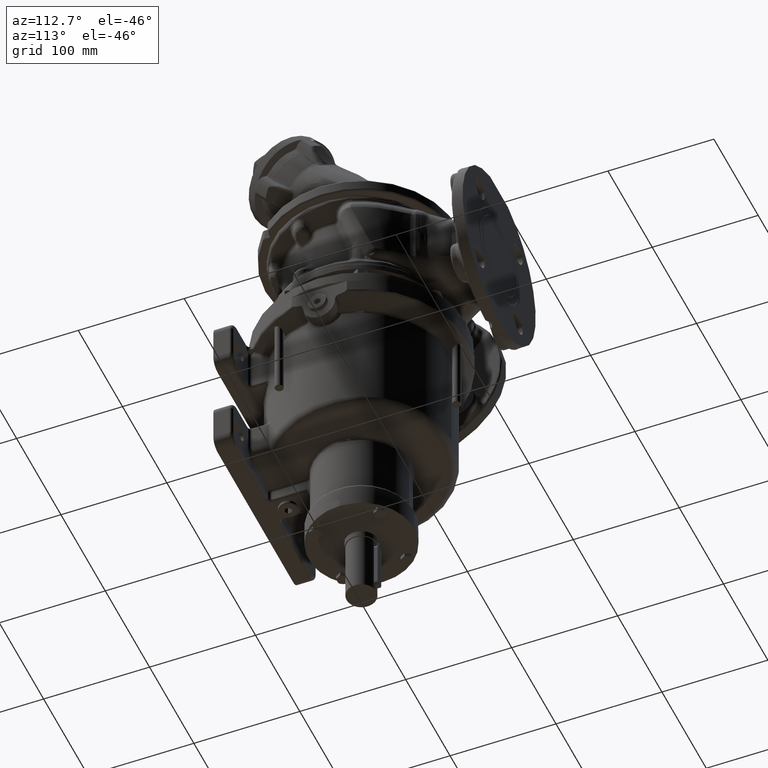
[diagram: clean part render]
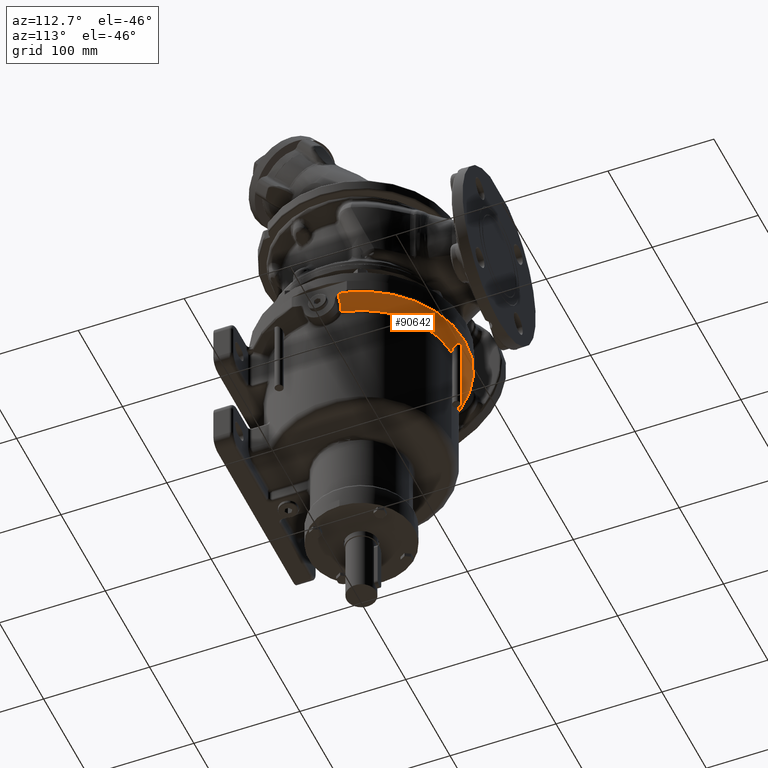
[diagram: same view with one face highlighted and labeled with its STEP entity id]
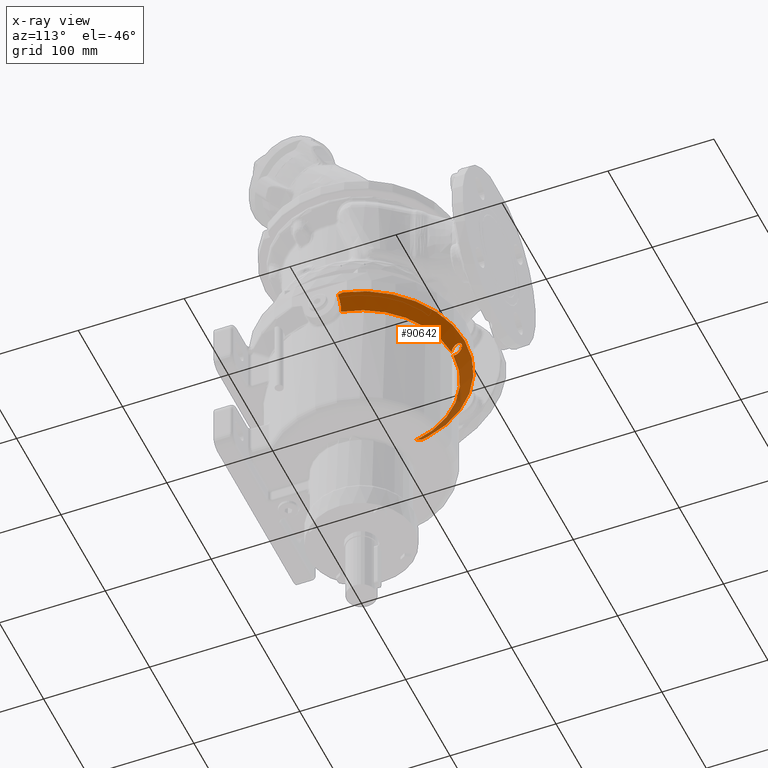
[diagram: x-ray of the same camera — body ghosted, the highlighted face saturated]
A machine part, auxiliary view. The second image highlights one B-rep face of the part: STEP entity #90642.
The next image is the same camera in x-ray: the body ghosted, the highlighted face saturated — about 9% of this face is hidden behind the body in this view.
In plain terms, the highlighted conical surface has half-angle 45 deg.
Its self-contained STEP definition (entity closure, byte-faithful):
#29673=CARTESIAN_POINT('',(-9.5E1,2.247047364031E1,-1.287867965644E1));
#29674=CARTESIAN_POINT('',(-9.5E1,2.192824920039E1,-1.300348886760E1));
#29675=CARTESIAN_POINT('',(-9.5E1,2.084549862991E1,-1.324415795765E1));
#29676=CARTESIAN_POINT('',(-9.5E1,1.922680506453E1,-1.357821014218E1));
#29677=CARTESIAN_POINT('',(-9.5E1,1.815060332488E1,-1.378306616397E1));
#29678=CARTESIAN_POINT('',(-9.5E1,1.761329098931E1,-1.388101625770E1));
#29680=CARTESIAN_POINT('',(-9.5E1,1.761329098931E1,-1.388101625770E1));
#29681=CARTESIAN_POINT('',(-9.459411516413E1,1.761172689114E1,
-1.428038506624E1));
#29682=CARTESIAN_POINT('',(-9.378947191650E1,1.760858878325E1,
-1.507195441314E1));
#29683=CARTESIAN_POINT('',(-9.260435779258E1,1.760385593488E1,
-1.623734856087E1));
#29684=CARTESIAN_POINT('',(-9.182790589990E1,1.760068118428E1,
-1.700057102929E1));
#29685=CARTESIAN_POINT('',(-9.144316457862E1,1.759908958940E1,
-1.737867965644E1));
#29687=CARTESIAN_POINT('',(-9.144316457862E1,1.759908958940E1,
-1.737867965644E1));
#29688=CARTESIAN_POINT('',(-9.117289439830E1,1.759797147636E1,
-1.764429057116E1));
#29689=CARTESIAN_POINT('',(-9.063682061006E1,1.758424800469E1,
-1.817321798790E1));
#29690=CARTESIAN_POINT('',(-8.984494745654E1,1.752984551754E1,
-1.896089377491E1));
#29691=CARTESIAN_POINT('',(-8.906874398467E1,1.744252551007E1,
-1.973942371106E1));
#29692=CARTESIAN_POINT('',(-8.830949255715E1,1.732328261157E1,
-2.050743024855E1));
#29693=CARTESIAN_POINT('',(-8.757066513739E1,1.717351721526E1,
-2.126126965428E1));
#29694=CARTESIAN_POINT('',(-8.686339834245E1,1.699735031305E1,
-2.198921513824E1));
#29695=CARTESIAN_POINT('',(-8.618986867502E1,1.679820286981E1,
-2.268843485060E1));
#29696=CARTESIAN_POINT('',(-8.554793908484E1,1.657815602756E1,
-2.336056341306E1));
#29697=CARTESIAN_POINT('',(-8.493697999164E1,1.633953280975E1,
-2.400569227348E1));
#29698=CARTESIAN_POINT('',(-8.454886518013E1,1.616908037359E1,
-2.441894984376E1));
#29699=CARTESIAN_POINT('',(-8.435957144752E1,1.608136535201E1,
-2.462132040703E1));
#29701=CARTESIAN_POINT('',(-1.764905154510E0,8.586054233074E1,
-2.462132034356E1));
#29702=CARTESIAN_POINT('',(-1.824687973086E0,8.588603141967E1,
-2.459460803251E1));
#29703=CARTESIAN_POINT('',(-1.944097024382E0,8.594000617423E1,
-2.453806786871E1));
#29704=CARTESIAN_POINT('',(-2.122052957159E0,8.603006825990E1,
-2.444382326924E1));
#29705=CARTESIAN_POINT('',(-2.298652275217E0,8.612958368551E1,
-2.433980607158E1));
#29706=CARTESIAN_POINT('',(-2.473490620818E0,8.623884858055E1,
-2.422574269568E1));
#29707=CARTESIAN_POINT('',(-2.646142832871E0,8.635817662009E1,
-2.410134614049E1));
#29708=CARTESIAN_POINT('',(-2.816102697040E0,8.648786581020E1,
-2.396635100777E1));
#29709=CARTESIAN_POINT('',(-2.982796243052E0,8.662819666121E1,
-2.382051554327E1));
#29710=CARTESIAN_POINT('',(-3.145576097585E0,8.677942108067E1,
-2.366363327807E1));
#29711=CARTESIAN_POINT('',(-3.303715130384E0,8.694174496029E1,
-2.349555100347E1));
#29712=CARTESIAN_POINT('',(-3.456413995092E0,8.711532130369E1,
-2.331617558112E1));
#29713=CARTESIAN_POINT('',(-3.602799968600E0,8.730023364909E1,
-2.312549057680E1));
#29714=CARTESIAN_POINT('',(-3.741925135357E0,8.749647058034E1,
-2.292358168222E1));
#29715=CARTESIAN_POINT('',(-3.872786051115E0,8.770392439153E1,
-2.271063686797E1));
#29716=CARTESIAN_POINT('',(-3.994324910158E0,8.792236214284E1,
-2.248697459262E1));
#29717=CARTESIAN_POINT('',(-4.105444836513E0,8.815140495520E1,
-2.225306292757E1));
#29718=CARTESIAN_POINT('',(-4.205037580293E0,8.839053010977E1,
-2.200951499749E1));
#29719=CARTESIAN_POINT('',(-4.291996239744E0,8.863903535417E1,
-2.175712258088E1));
#29720=CARTESIAN_POINT('',(-4.365250174442E0,8.889604230017E1,
-2.149684940397E1));
#29721=CARTESIAN_POINT('',(-4.423795175157E0,8.916048569649E1,
-2.122983859163E1));
#29722=CARTESIAN_POINT('',(-4.466729480863E0,8.943113393231E1,
-2.095738860950E1));
#29723=CARTESIAN_POINT('',(-4.493283331937E0,8.970652801595E1,
-2.068101106073E1));
#29724=CARTESIAN_POINT('',(-4.502872175689E0,8.998518990381E1,
-2.040221856284E1));
#29725=CARTESIAN_POINT('',(-4.495086569317E0,9.026533180219E1,
-2.012281462616E1));
#29726=CARTESIAN_POINT('',(-4.469883195278E0,9.054417818822E1,
-1.984556091805E1));
#29727=CARTESIAN_POINT('',(-4.427706725584E0,9.081913880610E1,
-1.957300058318E1));
#29728=CARTESIAN_POINT('',(-4.369208625541E0,9.108862660615E1,
-1.930665699772E1));
#29729=CARTESIAN_POINT('',(-4.295178946107E0,9.135128103798E1,
-1.904781466487E1));
#29730=CARTESIAN_POINT('',(-4.206569636144E0,9.160581802382E1,
-1.879767003175E1));
#29731=CARTESIAN_POINT('',(-4.104432164195E0,9.185116715771E1,
-1.855719959588E1));
#29732=CARTESIAN_POINT('',(-3.989890553145E0,9.208643667795E1,
-1.832719814343E1));
#29733=CARTESIAN_POINT('',(-3.864113307613E0,9.231091018764E1,
-1.810828511787E1));
#29734=CARTESIAN_POINT('',(-3.728277330588E0,9.252405322680E1,
-1.790090114212E1));
#29735=CARTESIAN_POINT('',(-3.583539802754E0,9.272550071691E1,
-1.770532285830E1));
#29736=CARTESIAN_POINT('',(-3.431027756766E0,9.291502687014E1,
-1.752169421016E1));
#29737=CARTESIAN_POINT('',(-3.271804150026E0,9.309255053658E1,
-1.735002285126E1));
#29738=CARTESIAN_POINT('',(-3.106864459401E0,9.325810142737E1,
-1.719021408477E1));
#29739=CARTESIAN_POINT('',(-2.937128128323E0,9.341180304112E1,
-1.704208810325E1));
#29740=CARTESIAN_POINT('',(-2.763421652796E0,9.355386368862E1,
-1.690538912581E1));
#29741=CARTESIAN_POINT('',(-2.586487636784E0,9.368454752270E1,
-1.677981349969E1));
#29742=CARTESIAN_POINT('',(-2.406979183756E0,9.380416399056E1,
-1.666501979138E1));
#29743=CARTESIAN_POINT('',(-2.225459571801E0,9.391305366469E1,
-1.656064221815E1));
#29744=CARTESIAN_POINT('',(-2.042412159252E0,9.401157114099E1,
-1.646630674756E1));
#29745=CARTESIAN_POINT('',(-1.858238913961E0,9.410007748100E1,
-1.638163796100E1));
#29746=CARTESIAN_POINT('',(-1.673269185234E0,9.417892805215E1,
-1.630627028596E1));
#29747=CARTESIAN_POINT('',(-1.487770066457E0,9.424846290009E1,
-1.623985677315E1));
#29748=CARTESIAN_POINT('',(-1.301946760314E0,9.430900278018E1,
-1.618207247174E1));
#29749=CARTESIAN_POINT('',(-1.115945365328E0,9.436084333288E1,
-1.613261960476E1));
#29750=CARTESIAN_POINT('',(-9.298806777464E-1,9.440424487547E1,
-1.609123694760E1));
#29751=CARTESIAN_POINT('',(-7.438195327662E-1,9.443943572430E1,
-1.605769633857E1));
#29752=CARTESIAN_POINT('',(-5.577984241097E-1,9.446660612070E1,
-1.603180820181E1));
#29753=CARTESIAN_POINT('',(-3.718208116428E-1,9.448590535443E1,
-1.601342406190E1));
#29754=CARTESIAN_POINT('',(-1.859174583808E-1,9.449744131058E1,
-1.600243679994E1));
#29755=CARTESIAN_POINT('',(-6.192840175362E-2,9.45E1,-1.6E1));
#29756=CARTESIAN_POINT('',(3.594840314101E-13,9.45E1,-1.6E1));
#29758=CARTESIAN_POINT('',(3.594840314101E-13,9.45E1,-1.6E1));
#29759=CARTESIAN_POINT('',(6.195406490300E-2,9.45E1,-1.6E1));
#29760=CARTESIAN_POINT('',(1.859942843766E-1,9.449743918799E1,
-1.600243882138E1));
#29761=CARTESIAN_POINT('',(3.719733007105E-1,9.448589376497E1,
-1.601343510045E1));
#29762=CARTESIAN_POINT('',(5.580257021607E-1,9.446657879786E1,
-1.603183423095E1));
#29763=CARTESIAN_POINT('',(7.441209241282E-1,9.443938630452E1,
-1.605774343129E1));
#29764=CARTESIAN_POINT('',(9.302554355749E-1,9.440416686001E1,
-1.609131131587E1));
#29765=CARTESIAN_POINT('',(1.116393044326E0,9.436072991867E1,
-1.613272776424E1));
#29766=CARTESIAN_POINT('',(1.302466636330E0,9.430884690595E1,
-1.618222120174E1));
#29767=CARTESIAN_POINT('',(1.488362068495E0,9.424825686163E1,
-1.624005348845E1));
#29768=CARTESIAN_POINT('',(1.673932296534E0,9.417866388483E1,
-1.630652267735E1));
#29769=CARTESIAN_POINT('',(1.858972167442E0,9.409974661801E1,
-1.638195432744E1));
#29770=CARTESIAN_POINT('',(2.043215367246E0,9.401116377768E1,
-1.646669661265E1));
#29771=CARTESIAN_POINT('',(2.226329483917E0,9.391256060894E1,
-1.656111456801E1));
#29772=CARTESIAN_POINT('',(2.407913571904E0,9.380357464911E1,
-1.666558501017E1));
#29773=CARTESIAN_POINT('',(2.587483889654E0,9.368385021035E1,
-1.678048308803E1));
#29774=CARTESIAN_POINT('',(2.764474017406E0,9.355304759683E1,
-1.690617382168E1));
#29775=CARTESIAN_POINT('',(2.938230174548E0,9.341085675811E1,
-1.704299931121E1));
#29776=CARTESIAN_POINT('',(3.108009177883E0,9.325701254507E1,
-1.719126426955E1));
#29777=CARTESIAN_POINT('',(3.272981936452E0,9.309130743167E1,
-1.735122383424E1));
#29778=CARTESIAN_POINT('',(3.432226455622E0,9.291361921478E1,
-1.752305667889E1));
#29779=CARTESIAN_POINT('',(3.584746209993E0,9.272391810590E1,
-1.770685769763E1));
#29780=CARTESIAN_POINT('',(3.729476685095E0,9.252228563870E1,
-1.790261899706E1));
#29781=CARTESIAN_POINT('',(3.865287792077E0,9.230895067846E1,
-1.811019377223E1));
#29782=CARTESIAN_POINT('',(3.991020764023E0,9.208428020843E1,
-1.832930364048E1));
#29783=CARTESIAN_POINT('',(4.105497523206E0,9.184881048187E1,
-1.855950632920E1));
#29784=CARTESIAN_POINT('',(4.207548367692E0,9.160326016238E1,
-1.880018026456E1));
#29785=CARTESIAN_POINT('',(4.296047727016E0,9.134852665077E1,
-1.905052516700E1));
#29786=CARTESIAN_POINT('',(4.369945591650E0,9.108567676977E1,
-1.930956809456E1));
#29787=CARTESIAN_POINT('',(4.428285741775E0,9.081601709407E1,
-1.957609035736E1));
#29788=CARTESIAN_POINT('',(4.470288642119E0,9.054087436770E1,
-1.984884069707E1));
#29789=CARTESIAN_POINT('',(4.495291652597E0,9.026183459866E1,
-2.012629727581E1));
#29790=CARTESIAN_POINT('',(4.502851614324E0,8.998192778190E1,
-2.040547762485E1));
#29791=CARTESIAN_POINT('',(4.493090919985E0,8.970371935898E1,
-2.068382583010E1));
#29792=CARTESIAN_POINT('',(4.466407712888E0,8.942866674900E1,
-2.095986878219E1));
#29793=CARTESIAN_POINT('',(4.423392982646E0,8.915840910922E1,
-2.123193256934E1));
#29794=CARTESIAN_POINT('',(4.364809215210E0,8.889432730532E1,
-2.149858396924E1));
#29795=CARTESIAN_POINT('',(4.291556078566E0,8.863766931340E1,
-2.175850831057E1));
#29796=CARTESIAN_POINT('',(4.204631492286E0,8.838948591089E1,
-2.201057730339E1));
#29797=CARTESIAN_POINT('',(4.105099794177E0,8.815065177213E1,
-2.225383132620E1));
#29798=CARTESIAN_POINT('',(3.994060843981E0,8.792186473675E1,
-2.248748343915E1));
#29799=CARTESIAN_POINT('',(3.872617003736E0,8.770364735073E1,
-2.271092105643E1));
#29800=CARTESIAN_POINT('',(3.741858471751E0,8.749637724926E1,
-2.292367772995E1));
#29801=CARTESIAN_POINT('',(3.602836569713E0,8.730028728554E1,
-2.312543542740E1));
#29802=CARTESIAN_POINT('',(3.456547740809E0,8.711548509124E1,
-2.331600657116E1));
#29803=CARTESIAN_POINT('',(3.303936261219E0,8.694198637978E1,
-2.349530131554E1));
#29804=CARTESIAN_POINT('',(3.145870545185E0,8.677971027498E1,
-2.366333356945E1));
#29805=CARTESIAN_POINT('',(2.983142959416E0,8.662850416322E1,
-2.382019626567E1));
#29806=CARTESIAN_POINT('',(2.816479982924E0,8.648816847447E1,
-2.396603621176E1));
#29807=CARTESIAN_POINT('',(2.646526579323E0,8.635845497993E1,
-2.410105616091E1));
#29808=CARTESIAN_POINT('',(2.473852594443E0,8.623908562435E1,
-2.422549539267E1));
#29809=CARTESIAN_POINT('',(2.298965516392E0,8.612976828230E1,
-2.433961322334E1));
#29810=CARTESIAN_POINT('',(2.122289614979E0,8.603019291896E1,
-2.444369287229E1));
#29811=CARTESIAN_POINT('',(1.944229499657E0,8.594006746323E1,
-2.453800367775E1));
#29812=CARTESIAN_POINT('',(1.824735110891E0,8.588605151741E1,
-2.459458697027E1));
#29813=CARTESIAN_POINT('',(1.764905154511E0,8.586054233074E1,
-2.462132034356E1));
#29815=CARTESIAN_POINT('',(8.435957161218E1,1.608136534728E1,
-2.462132026178E1));
#29816=CARTESIAN_POINT('',(8.454866317592E1,1.616898639293E1,
-2.441916591988E1));
#29817=CARTESIAN_POINT('',(8.493632643882E1,1.633924911697E1,
-2.400638755806E1));
#29818=CARTESIAN_POINT('',(8.554638957760E1,1.657757411981E1,
-2.336219530088E1));
#29819=CARTESIAN_POINT('',(8.618741326640E1,1.679740561696E1,
-2.269099742357E1));
#29820=CARTESIAN_POINT('',(8.685983221156E1,1.699635915416E1,
-2.199290525151E1));
#29821=CARTESIAN_POINT('',(8.756588998623E1,1.717243290061E1,
-2.126616423526E1));
#29822=CARTESIAN_POINT('',(8.830513655358E1,1.732251493039E1,
-2.051185255106E1));
#29823=CARTESIAN_POINT('',(8.906544013101E1,1.744209774809E1,
-1.974274817174E1));
#29824=CARTESIAN_POINT('',(8.984275685673E1,1.752966339077E1,
-1.896307871285E1));
#29825=CARTESIAN_POINT('',(9.063568633097E1,1.758421028050E1,
-1.817433873369E1));
#29826=CARTESIAN_POINT('',(9.117251298200E1,1.759796989346E1,
-1.764466541296E1));
#29827=CARTESIAN_POINT('',(9.144316457862E1,1.759908958940E1,
-1.737867965644E1));
#29829=CARTESIAN_POINT('',(9.144316457862E1,1.759908958940E1,
-1.737867965644E1));
#29830=CARTESIAN_POINT('',(9.183854706673E1,1.760072520453E1,
-1.699011330944E1));
#29831=CARTESIAN_POINT('',(9.262919316942E1,1.760395660445E1,
-1.621293266662E1));
#29832=CARTESIAN_POINT('',(9.381480255433E1,1.760868839149E1,
-1.504703875886E1));
#29833=CARTESIAN_POINT('',(9.460497371184E1,1.761176872698E1,
-1.426970084114E1));
#29834=CARTESIAN_POINT('',(9.5E1,1.761329098121E1,-1.388101625880E1));
#29836=CARTESIAN_POINT('',(9.5E1,1.761329098121E1,-1.388101625880E1));
#29837=CARTESIAN_POINT('',(9.5E1,1.815064639945E1,-1.378305831126E1));
#29838=CARTESIAN_POINT('',(9.5E1,1.922690537326E1,-1.357819048881E1));
#29839=CARTESIAN_POINT('',(9.5E1,2.084560343853E1,-1.324413527002E1));
#29840=CARTESIAN_POINT('',(9.5E1,2.192829400942E1,-1.300347855346E1));
#29841=CARTESIAN_POINT('',(9.5E1,2.247047364031E1,-1.287867965644E1));
#29843=CARTESIAN_POINT('',(0.E0,0.E0,-1.287867965644E1));
#29844=DIRECTION('',(0.E0,0.E0,-1.E0));
#29845=DIRECTION('',(-9.731480752941E-1,2.301799807791E-1,0.E0));
#29846=AXIS2_PLACEMENT_3D('',#29843,#29844,#29845);
#30388=CARTESIAN_POINT('',(0.E0,0.E0,-2.462132034356E1));
#30389=DIRECTION('',(0.E0,0.E0,1.E0));
#30390=DIRECTION('',(9.823109981200E-1,1.872567835152E-1,0.E0));
#30391=AXIS2_PLACEMENT_3D('',#30388,#30389,#30390);
#30421=CARTESIAN_POINT('',(0.E0,0.E0,-2.462132034356E1));
#30422=DIRECTION('',(0.E0,0.E0,1.E0));
#30423=DIRECTION('',(-2.055114449327E-2,9.997888029279E-1,0.E0));
#30424=AXIS2_PLACEMENT_3D('',#30421,#30422,#30423);
#42184=VERTEX_POINT('',#29701);
#42185=VERTEX_POINT('',#29756);
#42186=VERTEX_POINT('',#29813);
#42211=CARTESIAN_POINT('',(-9.144316457860E1,1.759908958940E1,
-1.737867965646E1));
#42213=VERTEX_POINT('',#42211);
#42219=CARTESIAN_POINT('',(9.144316457862E1,1.759908958940E1,
-1.737867965644E1));
#42221=VERTEX_POINT('',#42219);
#42422=CARTESIAN_POINT('',(-8.435957185940E1,1.608136553982E1,
-2.462132001139E1));
#42424=VERTEX_POINT('',#42422);
#42480=CARTESIAN_POINT('',(8.435957116335E1,1.608136513460E1,
-2.462132075332E1));
#42481=VERTEX_POINT('',#42480);
#42543=VERTEX_POINT('',#29673);
#42544=VERTEX_POINT('',#29678);
#42549=VERTEX_POINT('',#29836);
#42550=VERTEX_POINT('',#29841);
#90616=CARTESIAN_POINT('',(0.E0,0.E0,-1.875000002227E1));
#90617=DIRECTION('',(0.E0,0.E0,1.E0));
#90618=DIRECTION('',(0.E0,-1.E0,0.E0));
#90619=AXIS2_PLACEMENT_3D('',#90616,#90617,#90618);
#90620=CONICAL_SURFACE('',#90619,9.174999997773E1,4.5E1);
#90621=ORIENTED_EDGE('',*,*,#89398,.T.);
#90623=ORIENTED_EDGE('',*,*,#90622,.T.);
#90625=ORIENTED_EDGE('',*,*,#90624,.T.);
#90627=ORIENTED_EDGE('',*,*,#90626,.F.);
#90629=ORIENTED_EDGE('',*,*,#90628,.T.);
#90631=ORIENTED_EDGE('',*,*,#90630,.T.);
#90633=ORIENTED_EDGE('',*,*,#90632,.F.);
#90635=ORIENTED_EDGE('',*,*,#90634,.T.);
#90637=ORIENTED_EDGE('',*,*,#90636,.T.);
#90638=ORIENTED_EDGE('',*,*,#90572,.T.);
#90639=ORIENTED_EDGE('',*,*,#90609,.F.);
#90640=EDGE_LOOP('',(#90621,#90623,#90625,#90627,#90629,#90631,#90633,#90635,
#90637,#90638,#90639));
#90641=FACE_OUTER_BOUND('',#90640,.F.);
#90642=ADVANCED_FACE('',(#90641),#90620,.T.);
#29679=B_SPLINE_CURVE_WITH_KNOTS('',3,(#29673,#29674,#29675,#29676,#29677,
#29678),.UNSPECIFIED.,.F.,.F.,(4,1,1,4),(0.E0,3.333333333333E-1,
6.666666666667E-1,1.E0),.UNSPECIFIED.);
#29686=B_SPLINE_CURVE_WITH_KNOTS('',3,(#29680,#29681,#29682,#29683,#29684,
#29685),.UNSPECIFIED.,.F.,.F.,(4,1,1,4),(0.E0,3.333333333333E-1,
6.666666666667E-1,1.E0),.UNSPECIFIED.);
#29700=B_SPLINE_CURVE_WITH_KNOTS('',3,(#29687,#29688,#29689,#29690,#29691,
#29692,#29693,#29694,#29695,#29696,#29697,#29698,#29699),.UNSPECIFIED.,.F.,.F.,(
4,1,1,1,1,1,1,1,1,1,4),(0.E0,1.E-1,2.E-1,3.E-1,4.E-1,5.E-1,6.E-1,7.E-1,8.E-1,
9.E-1,1.E0),.UNSPECIFIED.);
#29757=B_SPLINE_CURVE_WITH_KNOTS('',3,(#29701,#29702,#29703,#29704,#29705,
#29706,#29707,#29708,#29709,#29710,#29711,#29712,#29713,#29714,#29715,#29716,
#29717,#29718,#29719,#29720,#29721,#29722,#29723,#29724,#29725,#29726,#29727,
#29728,#29729,#29730,#29731,#29732,#29733,#29734,#29735,#29736,#29737,#29738,
#29739,#29740,#29741,#29742,#29743,#29744,#29745,#29746,#29747,#29748,#29749,
#29750,#29751,#29752,#29753,#29754,#29755,#29756),.UNSPECIFIED.,.F.,.F.,(4,1,1,
1,1,1,1,1,1,1,1,1,1,1,1,1,1,1,1,1,1,1,1,1,1,1,1,1,1,1,1,1,1,1,1,1,1,1,1,1,1,1,1,
1,1,1,1,1,1,1,1,1,1,4),(0.E0,1.886792452830E-2,3.773584905660E-2,
5.660377358491E-2,7.547169811321E-2,9.433962264151E-2,1.132075471698E-1,
1.320754716981E-1,1.509433962264E-1,1.698113207547E-1,1.886792452830E-1,
2.075471698113E-1,2.264150943396E-1,2.452830188679E-1,2.641509433962E-1,
2.830188679245E-1,3.018867924528E-1,3.207547169811E-1,3.396226415094E-1,
3.584905660377E-1,3.773584905660E-1,3.962264150943E-1,4.150943396226E-1,
4.339622641509E-1,4.528301886792E-1,4.716981132075E-1,4.905660377358E-1,
5.094339622642E-1,5.283018867925E-1,5.471698113208E-1,5.660377358491E-1,
5.849056603774E-1,6.037735849057E-1,6.226415094340E-1,6.415094339623E-1,
6.603773584906E-1,6.792452830189E-1,6.981132075472E-1,7.169811320755E-1,
7.358490566038E-1,7.547169811321E-1,7.735849056604E-1,7.924528301887E-1,
8.113207547170E-1,8.301886792453E-1,8.490566037736E-1,8.679245283019E-1,
8.867924528302E-1,9.056603773585E-1,9.245283018868E-1,9.433962264151E-1,
9.622641509434E-1,9.811320754717E-1,1.E0),.UNSPECIFIED.);
#29814=B_SPLINE_CURVE_WITH_KNOTS('',3,(#29758,#29759,#29760,#29761,#29762,
#29763,#29764,#29765,#29766,#29767,#29768,#29769,#29770,#29771,#29772,#29773,
#29774,#29775,#29776,#29777,#29778,#29779,#29780,#29781,#29782,#29783,#29784,
#29785,#29786,#29787,#29788,#29789,#29790,#29791,#29792,#29793,#29794,#29795,
#29796,#29797,#29798,#29799,#29800,#29801,#29802,#29803,#29804,#29805,#29806,
#29807,#29808,#29809,#29810,#29811,#29812,#29813),.UNSPECIFIED.,.F.,.F.,(4,1,1,
1,1,1,1,1,1,1,1,1,1,1,1,1,1,1,1,1,1,1,1,1,1,1,1,1,1,1,1,1,1,1,1,1,1,1,1,1,1,1,1,
1,1,1,1,1,1,1,1,1,1,4),(0.E0,1.886792452830E-2,3.773584905660E-2,
5.660377358491E-2,7.547169811321E-2,9.433962264151E-2,1.132075471698E-1,
1.320754716981E-1,1.509433962264E-1,1.698113207547E-1,1.886792452830E-1,
2.075471698113E-1,2.264150943396E-1,2.452830188679E-1,2.641509433962E-1,
2.830188679245E-1,3.018867924528E-1,3.207547169811E-1,3.396226415094E-1,
3.584905660377E-1,3.773584905660E-1,3.962264150943E-1,4.150943396226E-1,
4.339622641509E-1,4.528301886792E-1,4.716981132075E-1,4.905660377358E-1,
5.094339622642E-1,5.283018867925E-1,5.471698113208E-1,5.660377358491E-1,
5.849056603774E-1,6.037735849057E-1,6.226415094340E-1,6.415094339623E-1,
6.603773584906E-1,6.792452830189E-1,6.981132075472E-1,7.169811320755E-1,
7.358490566038E-1,7.547169811321E-1,7.735849056604E-1,7.924528301887E-1,
8.113207547170E-1,8.301886792453E-1,8.490566037736E-1,8.679245283019E-1,
8.867924528302E-1,9.056603773585E-1,9.245283018868E-1,9.433962264151E-1,
9.622641509434E-1,9.811320754717E-1,1.E0),.UNSPECIFIED.);
#29828=B_SPLINE_CURVE_WITH_KNOTS('',3,(#29815,#29816,#29817,#29818,#29819,
#29820,#29821,#29822,#29823,#29824,#29825,#29826,#29827),.UNSPECIFIED.,.F.,.F.,(
4,1,1,1,1,1,1,1,1,1,4),(0.E0,1.E-1,2.E-1,3.E-1,4.E-1,5.E-1,6.E-1,7.E-1,8.E-1,
9.E-1,1.E0),.UNSPECIFIED.);
#29835=B_SPLINE_CURVE_WITH_KNOTS('',3,(#29829,#29830,#29831,#29832,#29833,
#29834),.UNSPECIFIED.,.F.,.F.,(4,1,1,4),(0.E0,3.333333333333E-1,
6.666666666667E-1,1.E0),.UNSPECIFIED.);
#29842=B_SPLINE_CURVE_WITH_KNOTS('',3,(#29836,#29837,#29838,#29839,#29840,
#29841),.UNSPECIFIED.,.F.,.F.,(4,1,1,4),(0.E0,3.333333333333E-1,
6.666666666667E-1,1.E0),.UNSPECIFIED.);
#29847=CIRCLE('',#29846,9.762132034356E1);
#30392=CIRCLE('',#30391,8.587867965644E1);
#30425=CIRCLE('',#30424,8.587867965644E1);
#89398=EDGE_CURVE('',#42543,#42544,#29679,.T.);
#90572=EDGE_CURVE('',#42549,#42550,#29842,.T.);
#90609=EDGE_CURVE('',#42543,#42550,#29847,.T.);
#90622=EDGE_CURVE('',#42544,#42213,#29686,.T.);
#90624=EDGE_CURVE('',#42213,#42424,#29700,.T.);
#90626=EDGE_CURVE('',#42184,#42424,#30425,.T.);
#90628=EDGE_CURVE('',#42184,#42185,#29757,.T.);
#90630=EDGE_CURVE('',#42185,#42186,#29814,.T.);
#90632=EDGE_CURVE('',#42481,#42186,#30392,.T.);
#90634=EDGE_CURVE('',#42481,#42221,#29828,.T.);
#90636=EDGE_CURVE('',#42221,#42549,#29835,.T.);